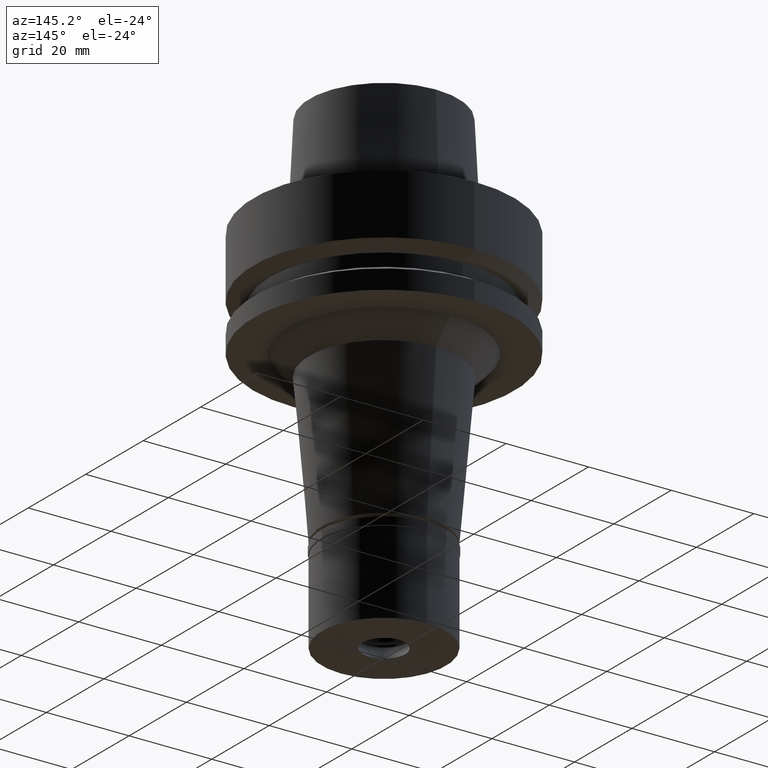
[diagram: clean part render]
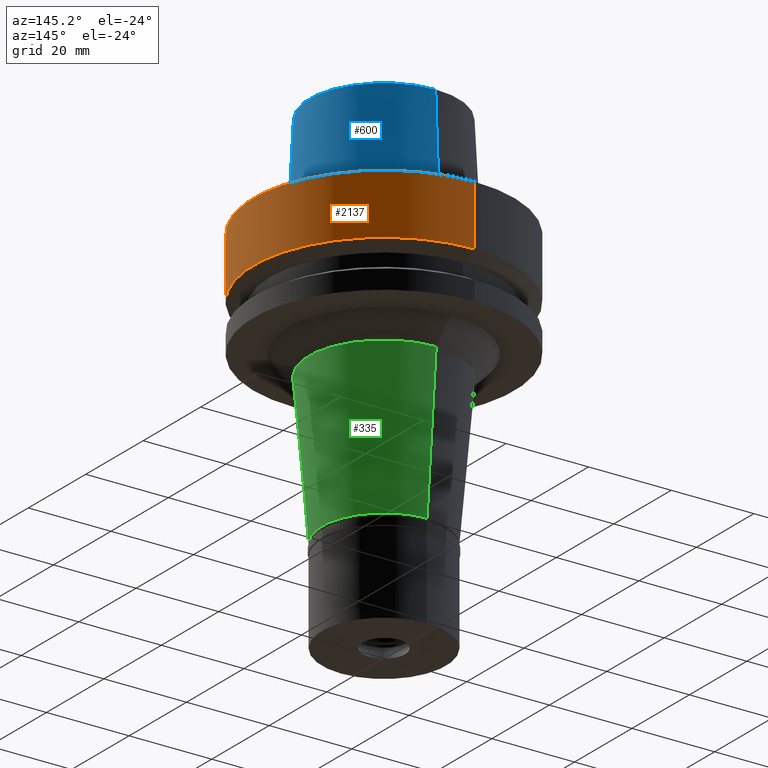
[diagram: same view with three faces highlighted in distinct colors, each labeled with its STEP entity id]
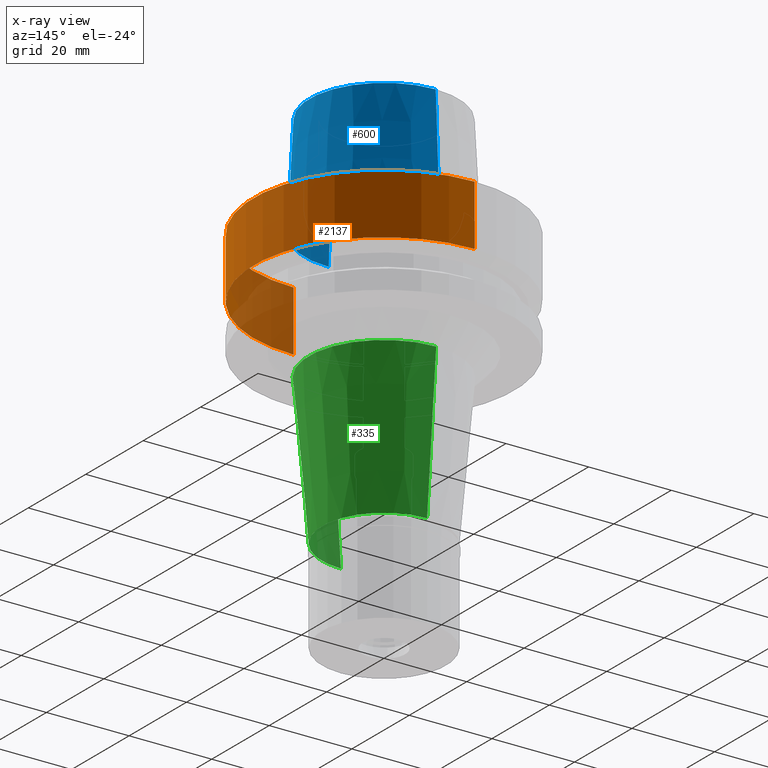
[diagram: x-ray of the same camera — body ghosted, the three highlighted faces saturated]
A machine part, auxiliary view with three faces highlighted in distinct colors.
The next image is the same camera in x-ray (body ghosted, the three faces saturated) — at least one of them is partly hidden behind the body in this view.
Their STEP definitions:

[orange] entity #2137 — the highlighted cylindrical surface (partial cylindrical patch) has radius 31.5 mm, axis along (0, 0, 1).
#3 = CARTESIAN_POINT ( 'NONE',  ( 0.0000000000000000000, -31.50000000000000000, 1.278976924367999843E-13 ) ) ;
#49 = CARTESIAN_POINT ( 'NONE',  ( 0.0000000000000000000, -31.50000000000000000, -14.62250092523999889 ) ) ;
#97 = CIRCLE ( 'NONE', #139, 31.50000000000000000 ) ;
#139 = AXIS2_PLACEMENT_3D ( 'NONE', #623, #1704, #592 ) ;
#169 = AXIS2_PLACEMENT_3D ( 'NONE', #943, #2462, #224 ) ;
#224 = DIRECTION ( 'NONE',  ( 0.0000000000000000000, 1.000000000000000000, 0.0000000000000000000 ) ) ;
#397 = VERTEX_POINT ( 'NONE', #1738 ) ;
#480 = EDGE_CURVE ( 'NONE', #2613, #1136, #1998, .T. ) ;
#592 = DIRECTION ( 'NONE',  ( 0.0000000000000000000, 1.000000000000000000, 0.0000000000000000000 ) ) ;
#623 = CARTESIAN_POINT ( 'NONE',  ( 0.0000000000000000000, 0.0000000000000000000, 1.278976924367999843E-13 ) ) ;
#770 = EDGE_CURVE ( 'NONE', #2022, #2613, #97, .T. ) ;
#943 = CARTESIAN_POINT ( 'NONE',  ( 0.0000000000000000000, 0.0000000000000000000, -88.71500000000000341 ) ) ;
#947 = CARTESIAN_POINT ( 'NONE',  ( 0.0000000000000000000, 31.50000000000000000, 8.526512829120999020E-14 ) ) ;
#1111 = EDGE_CURVE ( 'NONE', #2022, #397, #1674, .T. ) ;
#1136 = VERTEX_POINT ( 'NONE', #49 ) ;
#1176 = VECTOR ( 'NONE', #1571, 1000.000000000000000 ) ;
#1177 = ORIENTED_EDGE ( 'NONE', *, *, #770, .T. ) ;
#1217 = EDGE_LOOP ( 'NONE', ( #1177, #2420, #1640, #1939 ) ) ;
#1311 = CARTESIAN_POINT ( 'NONE',  ( 0.0000000000000000000, -31.50000000000000000, 8.526512829120999020E-14 ) ) ;
#1456 = DIRECTION ( 'NONE',  ( 0.0000000000000000000, 4.130355870612999632E-14, -1.000000000000000000 ) ) ;
#1527 = DIRECTION ( 'NONE',  ( 0.0000000000000000000, 0.0000000000000000000, 1.000000000000000000 ) ) ;
#1571 = DIRECTION ( 'NONE',  ( 0.0000000000000000000, -4.130355870612999632E-14, -1.000000000000000000 ) ) ;
#1640 = ORIENTED_EDGE ( 'NONE', *, *, #1820, .T. ) ;
#1674 = LINE ( 'NONE', #947, #1785 ) ;
#1704 = DIRECTION ( 'NONE',  ( 0.0000000000000000000, 0.0000000000000000000, -1.000000000000000000 ) ) ;
#1738 = CARTESIAN_POINT ( 'NONE',  ( 0.0000000000000000000, 31.50000000000000000, -14.62250092523999889 ) ) ;
#1785 = VECTOR ( 'NONE', #1456, 1000.000000000000000 ) ;
#1820 = EDGE_CURVE ( 'NONE', #1136, #397, #2126, .T. ) ;
#1939 = ORIENTED_EDGE ( 'NONE', *, *, #1111, .F. ) ;
#1998 = LINE ( 'NONE', #1311, #1176 ) ;
#2022 = VERTEX_POINT ( 'NONE', #2204 ) ;
#2126 = CIRCLE ( 'NONE', #2493, 31.50000000000000000 ) ;
#2137 = ADVANCED_FACE ( 'NONE', ( #2258 ), #2445, .T. ) ;
#2204 = CARTESIAN_POINT ( 'NONE',  ( 0.0000000000000000000, 31.50000000000000000, 1.278976924367999843E-13 ) ) ;
#2258 = FACE_OUTER_BOUND ( 'NONE', #1217, .T. ) ;
#2399 = DIRECTION ( 'NONE',  ( 0.0000000000000000000, -1.000000000000000000, 0.0000000000000000000 ) ) ;
#2420 = ORIENTED_EDGE ( 'NONE', *, *, #480, .T. ) ;
#2445 = CYLINDRICAL_SURFACE ( 'NONE', #169, 31.50000000000000000 ) ;
#2462 = DIRECTION ( 'NONE',  ( 0.0000000000000000000, 0.0000000000000000000, 1.000000000000000000 ) ) ;
#2493 = AXIS2_PLACEMENT_3D ( 'NONE', #2604, #1527, #2399 ) ;
#2604 = CARTESIAN_POINT ( 'NONE',  ( 0.0000000000000000000, 0.0000000000000000000, -14.62250092523999889 ) ) ;
#2613 = VERTEX_POINT ( 'NONE', #3 ) ;

[blue] entity #600 — the highlighted conical surface has half-angle 2.862 deg.
#15 = EDGE_CURVE ( 'NONE', #1828, #1653, #1367, .T. ) ;
#185 = CARTESIAN_POINT ( 'NONE',  ( 0.0000000000000000000, -18.00000182882000033, 25.00000000000000000 ) ) ;
#376 = DIRECTION ( 'NONE',  ( 0.0000000000000000000, 1.000000000000000000, 0.0000000000000000000 ) ) ;
#382 = CARTESIAN_POINT ( 'NONE',  ( 0.0000000000000000000, -18.00000182882000033, 25.00000000000000000 ) ) ;
#410 = CARTESIAN_POINT ( 'NONE',  ( 0.0000000000000000000, 18.00000182882000033, 25.00000000000000000 ) ) ;
#437 = FACE_OUTER_BOUND ( 'NONE', #2704, .T. ) ;
#505 = EDGE_CURVE ( 'NONE', #1459, #2143, #2321, .T. ) ;
#600 = ADVANCED_FACE ( 'NONE', ( #437 ), #2364, .T. ) ;
#798 = ORIENTED_EDGE ( 'NONE', *, *, #1869, .F. ) ;
#862 = CARTESIAN_POINT ( 'NONE',  ( 0.0000000000000000000, 0.0000000000000000000, 12.50000000000000000 ) ) ;
#881 = DIRECTION ( 'NONE',  ( 0.0000000000000000000, 0.0000000000000000000, -1.000000000000000000 ) ) ;
#940 = AXIS2_PLACEMENT_3D ( 'NONE', #862, #881, #2662 ) ;
#952 = CARTESIAN_POINT ( 'NONE',  ( 0.0000000000000000000, 0.0000000000000000000, 25.00000000000000000 ) ) ;
#1078 = AXIS2_PLACEMENT_3D ( 'NONE', #2616, #2443, #2431 ) ;
#1294 = LINE ( 'NONE', #185, #2304 ) ;
#1343 = DIRECTION ( 'NONE',  ( 0.0000000000000000000, -0.04993752584486958745, -0.9987523434327917338 ) ) ;
#1367 = CIRCLE ( 'NONE', #2238, 18.00000182882000033 ) ;
#1459 = VERTEX_POINT ( 'NONE', #1865 ) ;
#1617 = CARTESIAN_POINT ( 'NONE',  ( 0.0000000000000000000, 19.24999954280000125, 3.410605131648000255E-13 ) ) ;
#1653 = VERTEX_POINT ( 'NONE', #382 ) ;
#1773 = ORIENTED_EDGE ( 'NONE', *, *, #505, .T. ) ;
#1828 = VERTEX_POINT ( 'NONE', #410 ) ;
#1865 = CARTESIAN_POINT ( 'NONE',  ( 0.0000000000000000000, -19.24999954280000125, 3.410605131648000255E-13 ) ) ;
#1869 = EDGE_CURVE ( 'NONE', #1828, #2143, #2436, .T. ) ;
#1924 = DIRECTION ( 'NONE',  ( 0.0000000000000000000, 0.0000000000000000000, -1.000000000000000000 ) ) ;
#1935 = EDGE_CURVE ( 'NONE', #1653, #1459, #1294, .T. ) ;
#2018 = CARTESIAN_POINT ( 'NONE',  ( 0.0000000000000000000, 18.00000182882000033, 25.00000000000000000 ) ) ;
#2143 = VERTEX_POINT ( 'NONE', #1617 ) ;
#2238 = AXIS2_PLACEMENT_3D ( 'NONE', #952, #1924, #376 ) ;
#2304 = VECTOR ( 'NONE', #1343, 999.9999999999998863 ) ;
#2321 = CIRCLE ( 'NONE', #1078, 19.24999954280000125 ) ;
#2348 = VECTOR ( 'NONE', #2622, 999.9999999999998863 ) ;
#2364 = CONICAL_SURFACE ( 'NONE', #940, 18.62500068580999724, 0.04995830450907576964 ) ;
#2431 = DIRECTION ( 'NONE',  ( 0.0000000000000000000, -1.000000000000000000, 0.0000000000000000000 ) ) ;
#2436 = LINE ( 'NONE', #2018, #2348 ) ;
#2443 = DIRECTION ( 'NONE',  ( 0.0000000000000000000, 0.0000000000000000000, 1.000000000000000000 ) ) ;
#2616 = CARTESIAN_POINT ( 'NONE',  ( 0.0000000000000000000, 0.0000000000000000000, 5.115907697473000027E-13 ) ) ;
#2622 = DIRECTION ( 'NONE',  ( 0.0000000000000000000, 0.04993752584486958745, -0.9987523434327917338 ) ) ;
#2662 = DIRECTION ( 'NONE',  ( 0.0000000000000000000, -1.000000000000000000, 0.0000000000000000000 ) ) ;
#2687 = ORIENTED_EDGE ( 'NONE', *, *, #1935, .T. ) ;
#2704 = EDGE_LOOP ( 'NONE', ( #2715, #2687, #1773, #798 ) ) ;
#2715 = ORIENTED_EDGE ( 'NONE', *, *, #15, .T. ) ;

[green] entity #335 — the highlighted conical surface has half-angle 5 deg.
#124 = VERTEX_POINT ( 'NONE', #1275 ) ;
#125 = CIRCLE ( 'NONE', #406, 15.00000000000000000 ) ;
#300 = DIRECTION ( 'NONE',  ( 0.0000000000000000000, -0.08715574274768382590, -0.9961946980917432137 ) ) ;
#312 = AXIS2_PLACEMENT_3D ( 'NONE', #1308, #424, #1324 ) ;
#335 = ADVANCED_FACE ( 'NONE', ( #872 ), #1682, .T. ) ;
#406 = AXIS2_PLACEMENT_3D ( 'NONE', #1699, #1543, #634 ) ;
#421 = ORIENTED_EDGE ( 'NONE', *, *, #1185, .T. ) ;
#424 = DIRECTION ( 'NONE',  ( 0.0000000000000000000, 0.0000000000000000000, 1.000000000000000000 ) ) ;
#456 = VECTOR ( 'NONE', #300, 1000.000000000000227 ) ;
#634 = DIRECTION ( 'NONE',  ( 0.0000000000000000000, -1.000000000000000000, 0.0000000000000000000 ) ) ;
#745 = CARTESIAN_POINT ( 'NONE',  ( 0.0000000000000000000, 18.16708961963999869, -31.00000000000000000 ) ) ;
#840 = DIRECTION ( 'NONE',  ( 0.0000000000000000000, 1.000000000000000000, 0.0000000000000000000 ) ) ;
#846 = VERTEX_POINT ( 'NONE', #1374 ) ;
#872 = FACE_OUTER_BOUND ( 'NONE', #1162, .T. ) ;
#1162 = EDGE_LOOP ( 'NONE', ( #2142, #421, #2382, #2713 ) ) ;
#1185 = EDGE_CURVE ( 'NONE', #124, #846, #1864, .T. ) ;
#1275 = CARTESIAN_POINT ( 'NONE',  ( 0.0000000000000000000, -18.16708961963999869, -31.00000000000000000 ) ) ;
#1308 = CARTESIAN_POINT ( 'NONE',  ( 0.0000000000000000000, 0.0000000000000000000, -31.00000000000000000 ) ) ;
#1324 = DIRECTION ( 'NONE',  ( 0.0000000000000000000, -1.000000000000000000, 0.0000000000000000000 ) ) ;
#1363 = VECTOR ( 'NONE', #2737, 1000.000000000000227 ) ;
#1368 = LINE ( 'NONE', #745, #456 ) ;
#1374 = CARTESIAN_POINT ( 'NONE',  ( 0.0000000000000000000, -15.00000000000000000, -67.20000000000000284 ) ) ;
#1543 = DIRECTION ( 'NONE',  ( 0.0000000000000000000, 0.0000000000000000000, 1.000000000000000000 ) ) ;
#1603 = VERTEX_POINT ( 'NONE', #1675 ) ;
#1675 = CARTESIAN_POINT ( 'NONE',  ( 0.0000000000000000000, 15.00000000000000000, -67.20000000000000284 ) ) ;
#1682 = CONICAL_SURFACE ( 'NONE', #1965, 16.58354480981999757, 0.08726646259969973729 ) ;
#1699 = CARTESIAN_POINT ( 'NONE',  ( 0.0000000000000000000, 0.0000000000000000000, -67.20000000000000284 ) ) ;
#1864 = LINE ( 'NONE', #2527, #1363 ) ;
#1950 = CIRCLE ( 'NONE', #312, 18.16708961963999869 ) ;
#1953 = CARTESIAN_POINT ( 'NONE',  ( 0.0000000000000000000, 0.0000000000000000000, -49.09999999999999432 ) ) ;
#1965 = AXIS2_PLACEMENT_3D ( 'NONE', #1953, #2821, #840 ) ;
#2027 = VERTEX_POINT ( 'NONE', #2212 ) ;
#2142 = ORIENTED_EDGE ( 'NONE', *, *, #2487, .F. ) ;
#2212 = CARTESIAN_POINT ( 'NONE',  ( 0.0000000000000000000, 18.16708961963999869, -31.00000000000000000 ) ) ;
#2382 = ORIENTED_EDGE ( 'NONE', *, *, #2411, .T. ) ;
#2411 = EDGE_CURVE ( 'NONE', #846, #1603, #125, .T. ) ;
#2487 = EDGE_CURVE ( 'NONE', #124, #2027, #1950, .T. ) ;
#2527 = CARTESIAN_POINT ( 'NONE',  ( 0.0000000000000000000, -18.16708961963999869, -31.00000000000000000 ) ) ;
#2697 = EDGE_CURVE ( 'NONE', #2027, #1603, #1368, .T. ) ;
#2713 = ORIENTED_EDGE ( 'NONE', *, *, #2697, .F. ) ;
#2737 = DIRECTION ( 'NONE',  ( 0.0000000000000000000, 0.08715574274768382590, -0.9961946980917432137 ) ) ;
#2821 = DIRECTION ( 'NONE',  ( 0.0000000000000000000, 0.0000000000000000000, 1.000000000000000000 ) ) ;